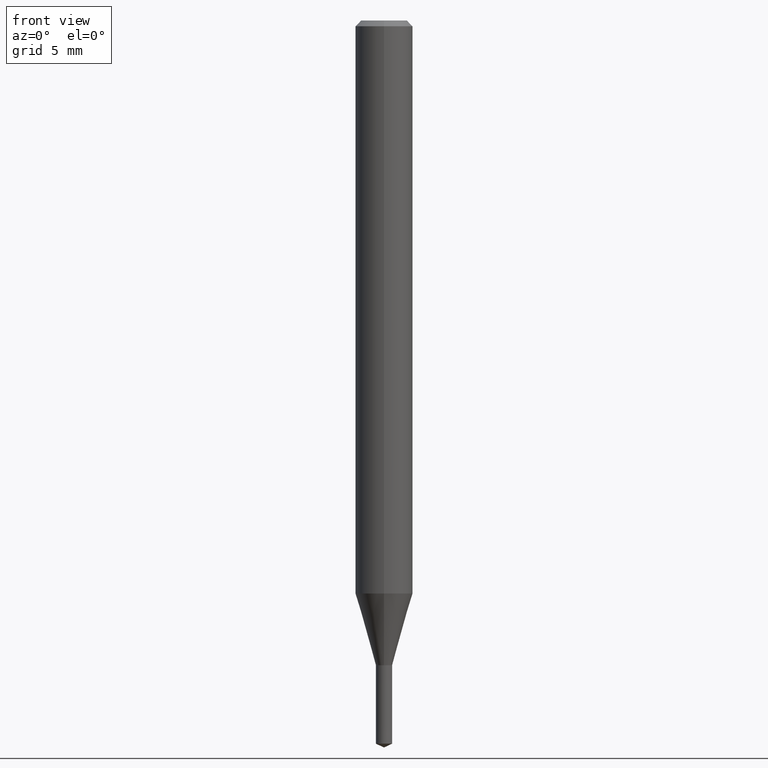
[diagram: clean part render]
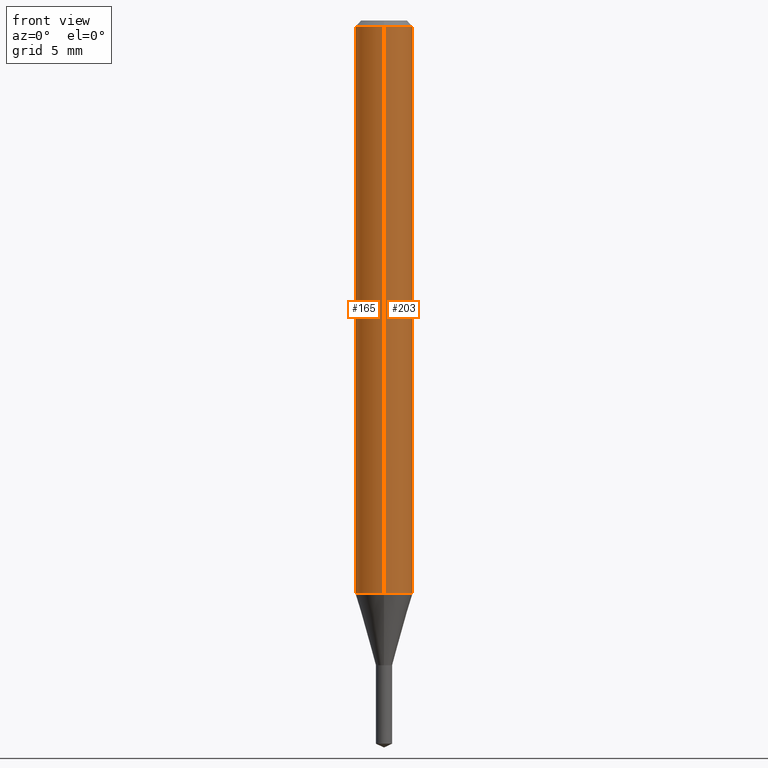
[diagram: same view with one multi-face feature highlighted, each face labeled with its STEP entity id]
A machine part, front view. The highlighted faces form ONE feature: a constant-radius fillet chain: 2 tangent blend faces with common blend radius 1.5 mm. The faces share edges in the B-rep.
Their STEP definitions:
[1] entity #203 (Cylinder):
#105=VERTEX_POINT('',#245);
#113=VERTEX_POINT('',#254);
#117=EDGE_CURVE('',#177,#199,#258,.T.);
#151=EDGE_CURVE('',#113,#105,#294,.T.);
#175=EDGE_CURVE('',#105,#177,#320,.T.);
#177=VERTEX_POINT('',#322);
#193=EDGE_CURVE('',#113,#199,#339,.T.);
#199=VERTEX_POINT('',#346);
#203=ADVANCED_FACE('',(#351),#352,.T.);
#245=CARTESIAN_POINT('',(0.0,1.5,-29.951));
#254=CARTESIAN_POINT('',(0.0,1.5,-0.300000000000001));
#258=LINE('',#406,#407);
#294=LINE('',#459,#460);
#320=CIRCLE('',#491,1.5);
#322=CARTESIAN_POINT('',(1.83690953073357E-016,-1.5,-29.951));
#339=CIRCLE('',#517,1.5);
#346=CARTESIAN_POINT('',(1.83690953073357E-016,-1.5,-0.300000000000001));
#351=FACE_OUTER_BOUND('',#529,.T.);
#352=CYLINDRICAL_SURFACE('',#530,1.5);
#406=CARTESIAN_POINT('',(1.83690953073357E-016,-1.5,-15.1255));
#407=VECTOR('',#581,1.0);
#459=CARTESIAN_POINT('',(-1.83690953073357E-016,1.5,-15.1255));
#460=VECTOR('',#627,1.0);
#491=AXIS2_PLACEMENT_3D('',#650,#651,#652);
#517=AXIS2_PLACEMENT_3D('',#669,#670,#671);
#529=EDGE_LOOP('',(#689,#690,#691,#692));
#530=AXIS2_PLACEMENT_3D('',#693,#694,#695);
#581=DIRECTION('',(-0.0,-0.0,1.0));
#627=DIRECTION('',(0.0,0.0,-1.0));
#650=CARTESIAN_POINT('',(0.0,0.0,-29.951));
#651=DIRECTION('',(0.0,0.0,-1.0));
#652=DIRECTION('',(0.0,1.0,0.0));
#669=CARTESIAN_POINT('',(0.0,0.0,-0.300000000000001));
#670=DIRECTION('',(0.0,0.0,-1.0));
#671=DIRECTION('',(0.0,1.0,0.0));
#689=ORIENTED_EDGE('',*,*,#151,.F.);
#690=ORIENTED_EDGE('',*,*,#193,.T.);
#691=ORIENTED_EDGE('',*,*,#117,.F.);
#692=ORIENTED_EDGE('',*,*,#175,.F.);
#693=CARTESIAN_POINT('',(0.0,0.0,-15.1255));
#694=DIRECTION('',(-0.0,-0.0,1.0));
#695=DIRECTION('',(0.0,1.0,0.0));
[2] entity #165 (Cylinder):
#105=VERTEX_POINT('',#245);
#113=VERTEX_POINT('',#254);
#117=EDGE_CURVE('',#177,#199,#258,.T.);
#119=EDGE_CURVE('',#177,#105,#260,.T.);
#135=EDGE_CURVE('',#199,#113,#277,.T.);
#151=EDGE_CURVE('',#113,#105,#294,.T.);
#165=ADVANCED_FACE('',(#309),#310,.T.);
#177=VERTEX_POINT('',#322);
#199=VERTEX_POINT('',#346);
#245=CARTESIAN_POINT('',(0.0,1.5,-29.951));
#254=CARTESIAN_POINT('',(0.0,1.5,-0.300000000000001));
#258=LINE('',#406,#407);
#260=CIRCLE('',#410,1.5);
#277=CIRCLE('',#435,1.5);
#294=LINE('',#459,#460);
#309=FACE_OUTER_BOUND('',#477,.T.);
#310=CYLINDRICAL_SURFACE('',#478,1.5);
#322=CARTESIAN_POINT('',(1.83690953073357E-016,-1.5,-29.951));
#346=CARTESIAN_POINT('',(1.83690953073357E-016,-1.5,-0.300000000000001));
#406=CARTESIAN_POINT('',(1.83690953073357E-016,-1.5,-15.1255));
#407=VECTOR('',#581,1.0);
#410=AXIS2_PLACEMENT_3D('',#582,#583,#584);
#435=AXIS2_PLACEMENT_3D('',#604,#605,#606);
#459=CARTESIAN_POINT('',(-1.83690953073357E-016,1.5,-15.1255));
#460=VECTOR('',#627,1.0);
#477=EDGE_LOOP('',(#642,#643,#644,#645));
#478=AXIS2_PLACEMENT_3D('',#646,#647,#648);
#581=DIRECTION('',(-0.0,-0.0,1.0));
#582=CARTESIAN_POINT('',(0.0,0.0,-29.951));
#583=DIRECTION('',(0.0,0.0,-1.0));
#584=DIRECTION('',(0.0,1.0,0.0));
#604=CARTESIAN_POINT('',(0.0,0.0,-0.300000000000001));
#605=DIRECTION('',(0.0,0.0,-1.0));
#606=DIRECTION('',(0.0,1.0,0.0));
#627=DIRECTION('',(0.0,0.0,-1.0));
#642=ORIENTED_EDGE('',*,*,#151,.T.);
#643=ORIENTED_EDGE('',*,*,#119,.F.);
#644=ORIENTED_EDGE('',*,*,#117,.T.);
#645=ORIENTED_EDGE('',*,*,#135,.T.);
#646=CARTESIAN_POINT('',(0.0,0.0,-15.1255));
#647=DIRECTION('',(-0.0,-0.0,1.0));
#648=DIRECTION('',(0.0,1.0,0.0));